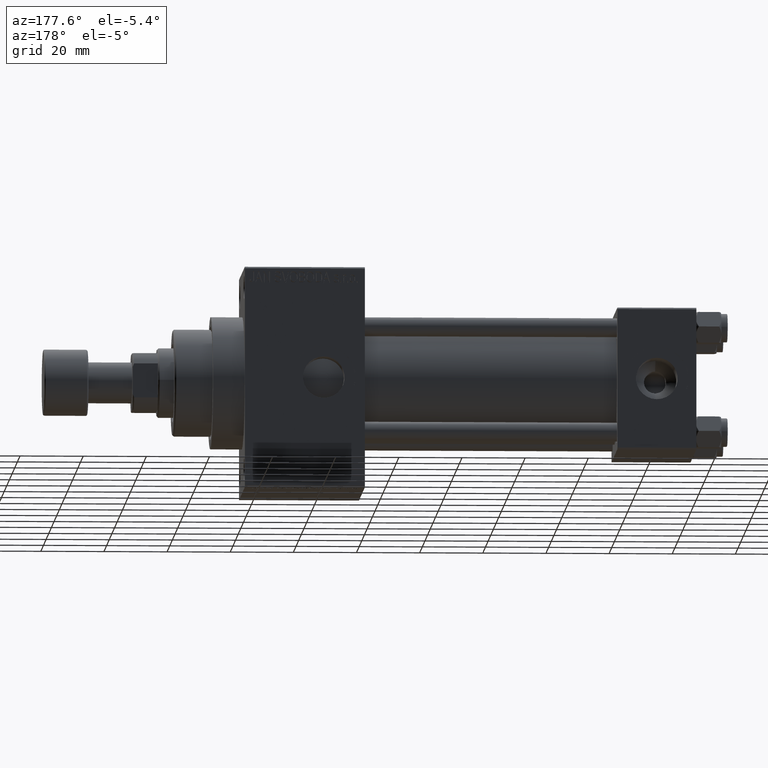
[diagram: clean part render]
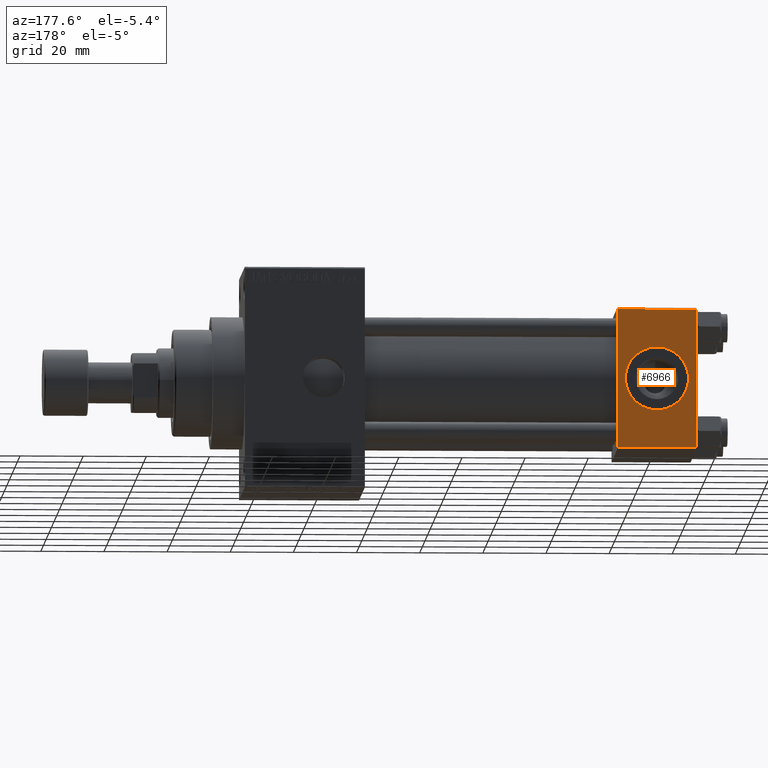
[diagram: same view with one face highlighted and labeled with its STEP entity id]
A machine part, auxiliary view. The second image highlights one B-rep face of the part: STEP entity #6966.
In plain terms, the highlighted planar face has unit normal (0, 1, 0).
Its self-contained STEP definition (entity closure, byte-faithful):
#259 = DIRECTION ( 'NONE',  ( 0.000000000000000000, 0.000000000000000000, 1.000000000000000000 ) ) ;
#1289 = CARTESIAN_POINT ( 'NONE',  ( 25.00000000000000000, 22.50000000000000000, 21.99999999999999645 ) ) ;
#2362 = EDGE_CURVE ( 'NONE', #20779, #11952, #14712, .T. ) ;
#2714 = CARTESIAN_POINT ( 'NONE',  ( 0.000000000000000000, 22.50000000000000000, 21.99999999999999645 ) ) ;
#2751 = VECTOR ( 'NONE', #7015, 1000.000000000000000 ) ;
#4457 = EDGE_CURVE ( 'NONE', #17717, #7456, #28599, .T. ) ;
#4836 = ORIENTED_EDGE ( 'NONE', *, *, #2362, .F. ) ;
#6966 = ADVANCED_FACE ( 'NONE', ( #27241, #26275 ), #12326, .T. ) ;
#7015 = DIRECTION ( 'NONE',  ( 0.000000000000000000, 0.000000000000000000, -1.000000000000000000 ) ) ;
#7456 = VERTEX_POINT ( 'NONE', #46536 ) ;
#8753 = DIRECTION ( 'NONE',  ( 1.000000000000000000, 0.000000000000000000, 0.000000000000000000 ) ) ;
#10319 = CARTESIAN_POINT ( 'NONE',  ( 12.50000000000000000, 22.50000000000000000, 0.000000000000000000 ) ) ;
#10595 = AXIS2_PLACEMENT_3D ( 'NONE', #27000, #11604, #30359 ) ;
#11491 = ORIENTED_EDGE ( 'NONE', *, *, #26347, .F. ) ;
#11604 = DIRECTION ( 'NONE',  ( -0.000000000000000000, 1.000000000000000000, 0.000000000000000000 ) ) ;
#11802 = DIRECTION ( 'NONE',  ( 0.000000000000000000, 1.000000000000000000, 0.000000000000000000 ) ) ;
#11952 = VERTEX_POINT ( 'NONE', #15768 ) ;
#12326 = PLANE ( 'NONE',  #10595 ) ;
#12561 = DIRECTION ( 'NONE',  ( -1.000000000000000000, 0.000000000000000000, 0.000000000000000000 ) ) ;
#12859 = EDGE_CURVE ( 'NONE', #44776, #20220, #43131, .T. ) ;
#14712 = LINE ( 'NONE', #40672, #2751 ) ;
#15078 = VECTOR ( 'NONE', #25435, 1000.000000000000000 ) ;
#15768 = CARTESIAN_POINT ( 'NONE',  ( 0.000000000000000000, 22.50000000000000000, -21.99999999999996803 ) ) ;
#17717 = VERTEX_POINT ( 'NONE', #23548 ) ;
#18132 = CARTESIAN_POINT ( 'NONE',  ( 12.50000000000000178, 22.50000000000000000, -9.999999999999996447 ) ) ;
#19047 = LINE ( 'NONE', #44542, #33336 ) ;
#20220 = VERTEX_POINT ( 'NONE', #39213 ) ;
#20779 = VERTEX_POINT ( 'NONE', #2714 ) ;
#22086 = DIRECTION ( 'NONE',  ( 0.000000000000000000, 1.000000000000000000, 0.000000000000000000 ) ) ;
#23098 = ORIENTED_EDGE ( 'NONE', *, *, #33092, .T. ) ;
#23110 = CARTESIAN_POINT ( 'NONE',  ( 12.50000000000000000, 22.50000000000000000, 0.000000000000000000 ) ) ;
#23548 = CARTESIAN_POINT ( 'NONE',  ( 25.00000000000000000, 22.50000000000000000, 21.99999999999999645 ) ) ;
#25435 = DIRECTION ( 'NONE',  ( 0.000000000000000000, 0.000000000000000000, -1.000000000000000000 ) ) ;
#26275 = FACE_OUTER_BOUND ( 'NONE', #39468, .T. ) ;
#26347 = EDGE_CURVE ( 'NONE', #20220, #44776, #28694, .T. ) ;
#27000 = CARTESIAN_POINT ( 'NONE',  ( 25.00000000000000000, 22.50000000000000000, 22.50000000000000355 ) ) ;
#27241 = FACE_BOUND ( 'NONE', #32220, .T. ) ;
#27808 = AXIS2_PLACEMENT_3D ( 'NONE', #10319, #22086, #47350 ) ;
#28599 = LINE ( 'NONE', #47325, #15078 ) ;
#28694 = CIRCLE ( 'NONE', #34853, 9.999999999999996447 ) ;
#28744 = EDGE_CURVE ( 'NONE', #7456, #11952, #19047, .T. ) ;
#28890 = VECTOR ( 'NONE', #8753, 1000.000000000000000 ) ;
#30359 = DIRECTION ( 'NONE',  ( 0.000000000000000000, -0.000000000000000000, 1.000000000000000000 ) ) ;
#32220 = EDGE_LOOP ( 'NONE', ( #11491, #33147 ) ) ;
#33092 = EDGE_CURVE ( 'NONE', #20779, #17717, #41688, .T. ) ;
#33147 = ORIENTED_EDGE ( 'NONE', *, *, #12859, .F. ) ;
#33336 = VECTOR ( 'NONE', #12561, 1000.000000000000000 ) ;
#34853 = AXIS2_PLACEMENT_3D ( 'NONE', #23110, #11802, #259 ) ;
#39213 = CARTESIAN_POINT ( 'NONE',  ( 12.50000000000000000, 22.50000000000000000, 9.999999999999996447 ) ) ;
#39468 = EDGE_LOOP ( 'NONE', ( #44539, #40523, #4836, #23098 ) ) ;
#40523 = ORIENTED_EDGE ( 'NONE', *, *, #28744, .T. ) ;
#40672 = CARTESIAN_POINT ( 'NONE',  ( 0.000000000000000000, 22.50000000000000000, 22.50000000000000355 ) ) ;
#41688 = LINE ( 'NONE', #1289, #28890 ) ;
#43131 = CIRCLE ( 'NONE', #27808, 9.999999999999996447 ) ;
#44539 = ORIENTED_EDGE ( 'NONE', *, *, #4457, .T. ) ;
#44542 = CARTESIAN_POINT ( 'NONE',  ( 25.00000000000000000, 22.50000000000000000, -21.99999999999998224 ) ) ;
#44776 = VERTEX_POINT ( 'NONE', #18132 ) ;
#46536 = CARTESIAN_POINT ( 'NONE',  ( 25.00000000000000000, 22.50000000000000000, -21.99999999999996803 ) ) ;
#47325 = CARTESIAN_POINT ( 'NONE',  ( 25.00000000000000000, 22.50000000000000000, 22.50000000000000355 ) ) ;
#47350 = DIRECTION ( 'NONE',  ( 0.000000000000000000, 0.000000000000000000, 1.000000000000000000 ) ) ;